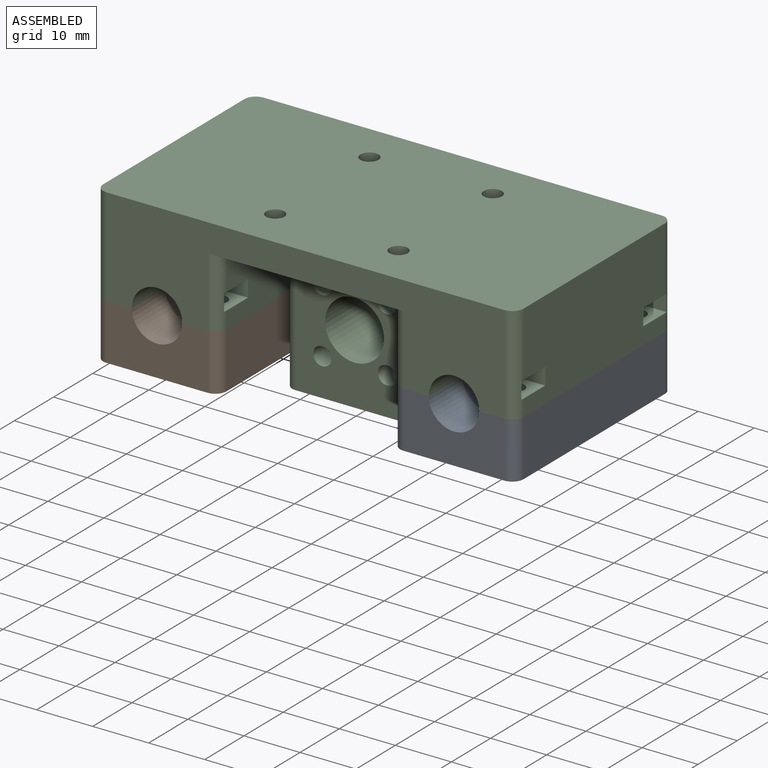
[diagram: assembled view]
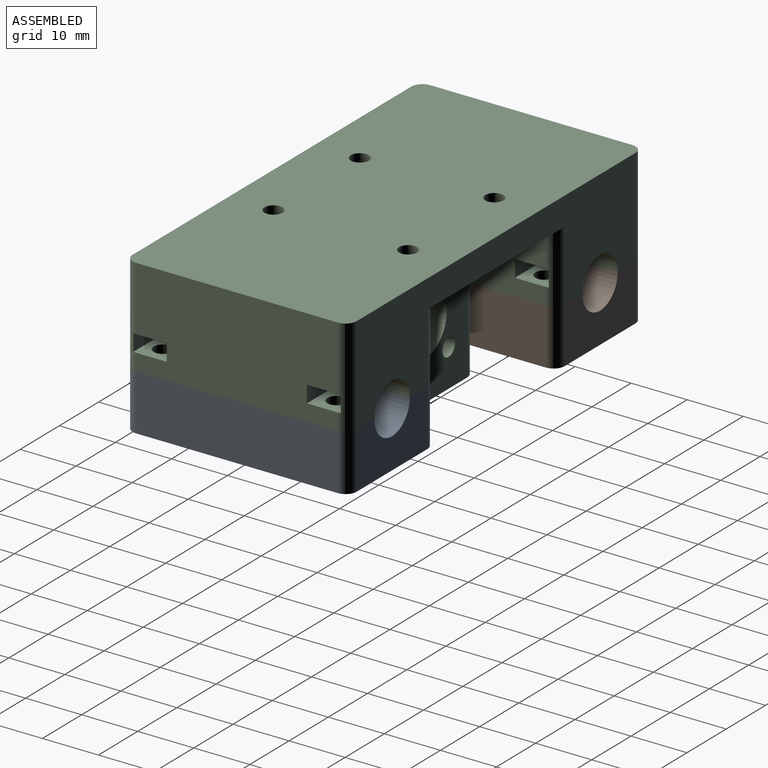
[diagram: assembled view, second angle]
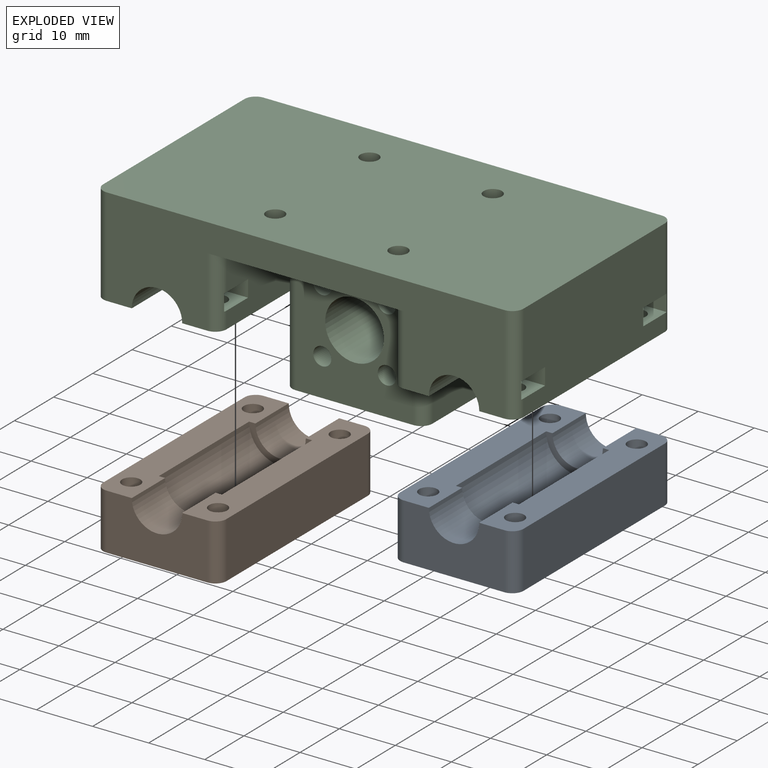
[diagram: exploded view]
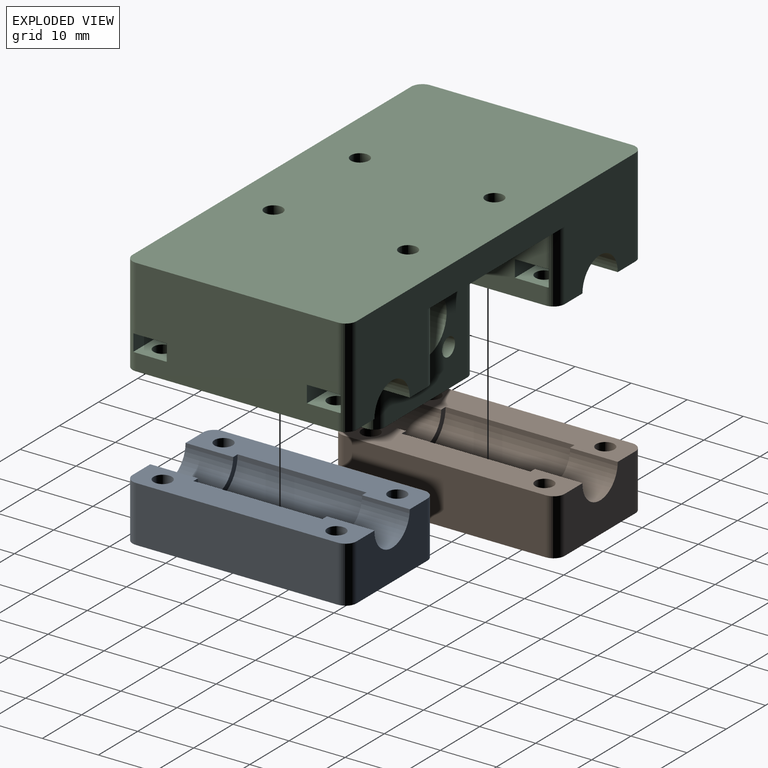
[diagram: exploded view, second angle]
ASSEMBLY  parts=3 mates=2
PART A: 20 faces, bbox 22x40x10 mm
  f0: plane 40x6.5mm, normal (0,0,1), area 215.8mm2, adj f3,f4,f5,f7,f8,f9,f10,f11
  f1: plane 40x6.5mm, normal (0,0,1), area 215.8mm2, adj f2,f3,f5,f7,f8,f9,f10,f11
  f2: plane 36x10mm, normal (1,0,0), area 360mm2, adj f1,f6,f16,f19
  f3: plane 18x10mm, normal (0,1,0), area 148.2mm2, adj f0,f1,f6,f11,f16,f17
  f4: plane 36x10mm, normal (-1,0,0), area 360mm2, adj f0,f6,f17,f18
  f5: plane 18x10mm, normal (0,-1,0), area 148.2mm2, adj f0,f1,f6,f10,f18,f19
  f6: plane 40x22mm, normal (0,0,-1), area 843.4mm2, adj f2,f3,f4,f5,f12,f13,f14,f15
  f7: cylinder r=5.62mm len=23mm, axis (0,-1,0), area 406.4mm2, adj f0,f1,f8,f9
  f8: plane 11.25x5.63mm, normal (0,-1,0), area 17.9mm2, adj f0,f1,f7,f11
  f9: plane 11.25x5.63mm, normal (0,1,0), area 17.9mm2, adj f0,f1,f7,f10
  f10: cylinder r=4.5mm len=9mm, axis (0,-1,0), area 120.2mm2, adj f0,f1,f5,f9
  f11: cylinder r=4.5mm len=9mm, axis (0,-1,0), area 120.2mm2, adj f0,f1,f3,f8
  f12: cylinder r=1.62mm len=10mm, axis (0,0,1), area 102.1mm2, adj f0,f6
  f13: cylinder r=1.62mm len=10mm, axis (0,0,1), area 102.1mm2, adj f1,f6
  f14: cylinder r=1.62mm len=10mm, axis (0,0,1), area 102.1mm2, adj f1,f6
  f15: cylinder r=1.62mm len=10mm, axis (0,0,1), area 102.1mm2, adj f0,f6
  f16: cylinder r=2mm len=10mm, axis (0,0,1), area 31.4mm2, adj f1,f2,f3,f6
  f17: cylinder r=2mm len=10mm, axis (0,0,-1), area 31.4mm2, adj f0,f3,f4,f6
  f18: cylinder r=2mm len=10mm, axis (0,0,1), area 31.4mm2, adj f0,f4,f5,f6
  f19: cylinder r=2mm len=10mm, axis (0,0,-1), area 31.4mm2, adj f1,f2,f5,f6
PART B: same geometry as A
PART C: 124 faces, bbox 75x40x30 mm
  f0: plane 36x12.5mm, normal (1,0,0), area 417mm2, adj f6,f12,f102,f103,f106,f107,f109,f111
  f1: plane 36x17.5mm, normal (-1,0,0), area 597mm2, adj f4,f13,f92,f93,f96,f97,f99,f101
  f2: plane 36x12.5mm, normal (-1,0,0), area 417mm2, adj f5,f12,f82,f84,f86,f87,f88,f91
  f3: plane 36x17.5mm, normal (1,0,0), area 597mm2, adj f7,f13,f72,f73,f76,f77,f79,f81
  f4: plane 40x6.5mm, normal (0,0,-1), area 215.8mm2, adj f1,f9,f10,f11,f25,f26,f27,f28
  f5: plane 40x6.5mm, normal (0,0,-1), area 215.8mm2, adj f2,f8,f10,f11,f24,f29,f30,f31
  f6: plane 40x6.5mm, normal (0,0,-1), area 215.8mm2, adj f0,f9,f10,f11,f25,f26,f27,f28
  f7: plane 40x6.5mm, normal (0,0,-1), area 215.8mm2, adj f3,f8,f10,f11,f24,f29,f30,f31
  f8: cylinder r=4.5mm len=9mm, axis (0,1,0), area 120.2mm2, adj f5,f7,f10,f30
  f9: cylinder r=4.5mm len=9mm, axis (0,1,0), area 120.2mm2, adj f4,f6,f10,f27
  f10: plane 71x17.5mm, normal (0,1,0), area 741.4mm2, adj f4,f5,f6,f7,f8,f9,f12,f13
  f11: plane 71x17.5mm, normal (0,-1,0), area 741.4mm2, adj f4,f5,f6,f7,f12,f13,f24,f25
  f12: plane 40x35mm, normal (0,0,-1), area 757.3mm2, adj f0,f2,f10,f11,f14,f15,f16,f17
  f13: plane 75x40mm, normal (0,0,1), area 2963.4mm2, adj f1,f3,f10,f11,f60,f61,f62,f63
  f14: plane 25x21mm, normal (0,-1,0), area 405.2mm2, adj f12,f18,f19,f20,f21,f22,f23,f116
  f15: plane 25x11mm, normal (-1,0,0), area 275mm2, adj f12,f18,f116,f117
  f16: plane 25x21mm, normal (0,1,0), area 405.2mm2, adj f12,f18,f19,f20,f21,f22,f23,f117
  f17: plane 25x11mm, normal (1,0,0), area 275mm2, adj f12,f18,f118,f119
  f18: plane 25x15mm, normal (0,0,-1), area 371.6mm2, adj f14,f15,f16,f17,f116,f117,f118,f119
  f19: cylinder r=5.25mm len=15mm, axis (0,1,0), area 494.8mm2, adj f14,f16
  f20: cylinder r=1.62mm len=15mm, axis (0,1,0), area 153.2mm2, adj f14,f16
  f21: cylinder r=1.62mm len=15mm, axis (0,1,0), area 153.2mm2, adj f14,f16
  f22: cylinder r=1.62mm len=15mm, axis (0,1,0), area 153.2mm2, adj f14,f16
  f23: cylinder r=1.62mm len=15mm, axis (0,1,0), area 153.2mm2, adj f14,f16
  f24: cylinder r=4.5mm len=9mm, axis (0,1,0), area 120.2mm2, adj f5,f7,f11,f31
  f25: cylinder r=4.5mm len=9mm, axis (0,1,0), area 120.2mm2, adj f4,f6,f11,f28
  f26: cylinder r=5.62mm len=23mm, axis (0,-1,0), area 406.4mm2, adj f4,f6,f27,f28
  f27: plane 11.25x5.63mm, normal (0,-1,0), area 17.9mm2, adj f4,f6,f9,f26
  f28: plane 11.25x5.63mm, normal (0,1,0), area 17.9mm2, adj f4,f6,f25,f26
  f29: cylinder r=5.62mm len=23mm, axis (0,-1,0), area 406.4mm2, adj f5,f7,f30,f31
  f30: plane 11.25x5.63mm, normal (0,-1,0), area 17.9mm2, adj f5,f7,f8,f29
  f31: plane 11.25x5.63mm, normal (0,1,0), area 17.9mm2, adj f5,f7,f24,f29
  f32: plane 2.88x2mm, normal (-0.5,-0.87,0), area 6.6mm2, adj f12,f33,f37,f38
  f33: plane 3.32x2mm, normal (-1,0,0), area 6.6mm2, adj f12,f32,f34,f38
  f34: plane 2.88x2mm, normal (-0.5,0.87,0), area 6.6mm2, adj f12,f33,f35,f38
  f35: plane 2.88x2mm, normal (0.5,0.87,0), area 6.6mm2, adj f12,f34,f36,f38
  f36: plane 3.32x2mm, normal (1,0,0), area 6.6mm2, adj f12,f35,f37,f38
  f37: plane 2.88x2mm, normal (0.5,-0.87,0), area 6.6mm2, adj f12,f32,f36,f38
  f38: plane 6.64x5.75mm, normal (0,0,-1), area 20.3mm2, adj f32,f33,f34,f35,f36,f37,f63
  f39: plane 2.88x2mm, normal (-0.5,-0.87,0), area 6.6mm2, adj f12,f40,f44,f45
  f40: plane 3.32x2mm, normal (-1,0,0), area 6.6mm2, adj f12,f39,f41,f45
  f41: plane 2.88x2mm, normal (-0.5,0.87,0), area 6.6mm2, adj f12,f40,f42,f45
  f42: plane 2.88x2mm, normal (0.5,0.87,0), area 6.6mm2, adj f12,f41,f43,f45
  f43: plane 3.32x2mm, normal (1,0,0), area 6.6mm2, adj f12,f42,f44,f45
  f44: plane 2.88x2mm, normal (0.5,-0.87,0), area 6.6mm2, adj f12,f39,f43,f45
  f45: plane 6.64x5.75mm, normal (0,0,-1), area 20.3mm2, adj f39,f40,f41,f42,f43,f44,f62
  f46: plane 2.88x2mm, normal (-0.5,-0.87,0), area 6.6mm2, adj f12,f47,f51,f52
  f47: plane 3.32x2mm, normal (-1,0,0), area 6.6mm2, adj f12,f46,f48,f52
  f48: plane 2.88x2mm, normal (-0.5,0.87,0), area 6.6mm2, adj f12,f47,f49,f52
  f49: plane 2.88x2mm, normal (0.5,0.87,0), area 6.6mm2, adj f12,f48,f50,f52
  f50: plane 3.32x2mm, normal (1,0,0), area 6.6mm2, adj f12,f49,f51,f52
  f51: plane 2.88x2mm, normal (0.5,-0.87,0), area 6.6mm2, adj f12,f46,f50,f52
  f52: plane 6.64x5.75mm, normal (0,0,-1), area 20.3mm2, adj f46,f47,f48,f49,f50,f51,f61
  f53: plane 2.88x2mm, normal (-0.5,-0.87,0), area 6.6mm2, adj f12,f54,f58,f59
  f54: plane 3.32x2mm, normal (-1,0,0), area 6.6mm2, adj f12,f53,f55,f59
  f55: plane 2.88x2mm, normal (-0.5,0.87,0), area 6.6mm2, adj f12,f54,f56,f59
  f56: plane 2.88x2mm, normal (0.5,0.87,0), area 6.6mm2, adj f12,f55,f57,f59
  f57: plane 3.32x2mm, normal (1,0,0), area 6.6mm2, adj f12,f56,f58,f59
  f58: plane 2.88x2mm, normal (0.5,-0.87,0), area 6.6mm2, adj f12,f53,f57,f59
  f59: plane 6.64x5.75mm, normal (0,0,-1), area 20.3mm2, adj f53,f54,f55,f56,f57,f58,f60
  f60: cylinder r=1.62mm len=3.25mm, axis (0,0,-1), area 30.6mm2, adj f13,f59
  f61: cylinder r=1.62mm len=3.25mm, axis (0,0,-1), area 30.6mm2, adj f13,f52
  f62: cylinder r=1.62mm len=3.25mm, axis (0,0,-1), area 30.6mm2, adj f13,f45
  f63: cylinder r=1.62mm len=3.25mm, axis (0,0,-1), area 30.6mm2, adj f13,f38
  f64: cylinder r=1.62mm len=3.25mm, axis (0,0,-1), area 30.6mm2, adj f7,f77
  f65: cylinder r=1.62mm len=3.25mm, axis (0,0,-1), area 30.6mm2, adj f7,f72
  f66: cylinder r=1.62mm len=3.25mm, axis (0,0,-1), area 30.6mm2, adj f6,f107
  f67: cylinder r=1.62mm len=3.25mm, axis (0,0,-1), area 30.6mm2, adj f6,f102
  f68: cylinder r=1.62mm len=3.25mm, axis (0,0,-1), area 30.6mm2, adj f5,f87
  f69: cylinder r=1.62mm len=3.25mm, axis (0,0,-1), area 30.6mm2, adj f5,f82
  f70: cylinder r=1.62mm len=3.25mm, axis (0,0,-1), area 30.6mm2, adj f4,f97
  f71: cylinder r=1.62mm len=3.25mm, axis (0,0,-1), area 30.6mm2, adj f4,f92
  f72: plane 6.5x6mm, normal (0,0,1), area 30.7mm2, adj f3,f65,f73,f74,f75,f120
  f73: plane 6.5x3mm, normal (0,1,0), area 19.5mm2, adj f3,f72,f75,f76
  f74: plane 6.44x3mm, normal (0,-1,0), area 19.3mm2, adj f72,f75,f76,f120
  f75: plane 6x3mm, normal (1,0,0), area 18mm2, adj f72,f73,f74,f76
  f76: plane 6.5x6mm, normal (0,0,-1), area 39mm2, adj f3,f73,f74,f75,f120
  f77: plane 6.5x6mm, normal (0,0,1), area 30.7mm2, adj f3,f64,f78,f79,f80,f123
  f78: plane 6.44x3mm, normal (0,1,0), area 19.3mm2, adj f77,f80,f81,f123
  f79: plane 6.5x3mm, normal (0,-1,0), area 19.5mm2, adj f3,f77,f80,f81
  f80: plane 6x3mm, normal (1,0,0), area 18mm2, adj f77,f78,f79,f81
  f81: plane 6.5x6mm, normal (0,0,-1), area 39mm2, adj f3,f78,f79,f80,f123
  f82: plane 6.5x6mm, normal (0,0,1), area 30.7mm2, adj f2,f69,f83,f84,f85,f113
  f83: plane 6.44x3mm, normal (0,-1,0), area 19.3mm2, adj f82,f85,f86,f113
  f84: plane 6.5x3mm, normal (0,1,0), area 19.5mm2, adj f2,f82,f85,f86
  f85: plane 6x3mm, normal (-1,0,0), area 18mm2, adj f82,f83,f84,f86
  f86: plane 6.5x6mm, normal (0,0,-1), area 39mm2, adj f2,f83,f84,f85,f113
  f87: plane 6.5x6mm, normal (0,0,1), area 30.7mm2, adj f2,f68,f88,f89,f90,f112
  f88: plane 6.5x3mm, normal (0,-1,0), area 19.5mm2, adj f2,f87,f90,f91
  f89: plane 6.44x3mm, normal (0,1,0), area 19.3mm2, adj f87,f90,f91,f112
  f90: plane 6x3mm, normal (-1,0,0), area 18mm2, adj f87,f88,f89,f91
  f91: plane 6.5x6mm, normal (0,0,-1), area 39mm2, adj f2,f88,f89,f90,f112
  f92: plane 6.5x6mm, normal (0,0,1), area 30.7mm2, adj f1,f71,f93,f94,f95,f122
  f93: plane 6.5x3mm, normal (0,-1,0), area 19.5mm2, adj f1,f92,f95,f96
  f94: plane 6.44x3mm, normal (0,1,0), area 19.3mm2, adj f92,f95,f96,f122
  f95: plane 6x3mm, normal (-1,0,0), area 18mm2, adj f92,f93,f94,f96
  f96: plane 6.5x6mm, normal (0,0,-1), area 39mm2, adj f1,f93,f94,f95,f122
  f97: plane 6.5x6mm, normal (0,0,1), area 30.7mm2, adj f1,f70,f98,f99,f100,f121
  f98: plane 6.44x3mm, normal (0,-1,0), area 19.3mm2, adj f97,f100,f101,f121
  f99: plane 6.5x3mm, normal (0,1,0), area 19.5mm2, adj f1,f97,f100,f101
  f100: plane 6x3mm, normal (-1,0,0), area 18mm2, adj f97,f98,f99,f101
  f101: plane 6.5x6mm, normal (0,0,-1), area 39mm2, adj f1,f98,f99,f100,f121
  f102: plane 6.5x6mm, normal (0,0,1), area 30.7mm2, adj f0,f67,f103,f104,f105,f114
  f103: plane 6.5x3mm, normal (0,1,0), area 19.5mm2, adj f0,f102,f105,f106
  f104: plane 6.44x3mm, normal (0,-1,0), area 19.3mm2, adj f102,f105,f106,f114
  f105: plane 6x3mm, normal (1,0,0), area 18mm2, adj f102,f103,f104,f106
  f106: plane 6.5x6mm, normal (0,0,-1), area 39mm2, adj f0,f103,f104,f105,f114
  f107: plane 6.5x6mm, normal (0,0,1), area 30.7mm2, adj f0,f66,f108,f109,f110,f115
  f108: plane 6.44x3mm, normal (0,1,0), area 19.3mm2, adj f107,f110,f111,f115
  f109: plane 6.5x3mm, normal (0,-1,0), area 19.5mm2, adj f0,f107,f110,f111
  f110: plane 6x3mm, normal (1,0,0), area 18mm2, adj f107,f108,f109,f111
  f111: plane 6.5x6mm, normal (0,0,-1), area 39mm2, adj f0,f108,f109,f110,f115
  f112: cylinder r=2mm len=12.5mm, axis (0,0,-1), area 37.8mm2, adj f2,f5,f11,f12,f87,f89,f91
  f113: cylinder r=2mm len=12.5mm, axis (0,0,1), area 37.8mm2, adj f2,f5,f10,f12,f82,f83,f86
  f114: cylinder r=2mm len=12.5mm, axis (0,0,-1), area 37.8mm2, adj f0,f6,f10,f12,f102,f104,f106
  f115: cylinder r=2mm len=12.5mm, axis (0,0,1), area 37.8mm2, adj f0,f6,f11,f12,f107,f108,f111
  f116: cylinder r=2mm len=25mm, axis (0,0,-1), area 78.5mm2, adj f12,f14,f15,f18
  f117: cylinder r=2mm len=25mm, axis (0,0,1), area 78.5mm2, adj f12,f15,f16,f18
  f118: cylinder r=2mm len=25mm, axis (0,0,-1), area 78.5mm2, adj f12,f16,f17,f18
  f119: cylinder r=2mm len=25mm, axis (0,0,1), area 78.5mm2, adj f12,f14,f17,f18
  f120: cylinder r=2mm len=17.5mm, axis (0,0,1), area 53.5mm2, adj f3,f7,f10,f13,f72,f74,f76
  f121: cylinder r=2mm len=17.5mm, axis (0,0,-1), area 53.5mm2, adj f1,f4,f10,f13,f97,f98,f101
  f122: cylinder r=2mm len=17.5mm, axis (0,0,1), area 53.5mm2, adj f1,f4,f11,f13,f92,f94,f96
  f123: cylinder r=2mm len=17.5mm, axis (0,0,-1), area 53.5mm2, adj f3,f7,f11,f13,f77,f78,f81
PLACE A t=(20.87,-2,-10.63)mm
PLACE B t=(-32.13,-2,-10.63)mm
PLACE C t=(-5.63,-2,11.87)mm
MATE planar B.f13 <-> C.f66  axis (0,0,1) through (-24.38,-17.5,-0.63)mm
MATE planar A.f13 <-> C.f64  axis (0,0,1) through (28.62,-17.5,-0.63)mm
